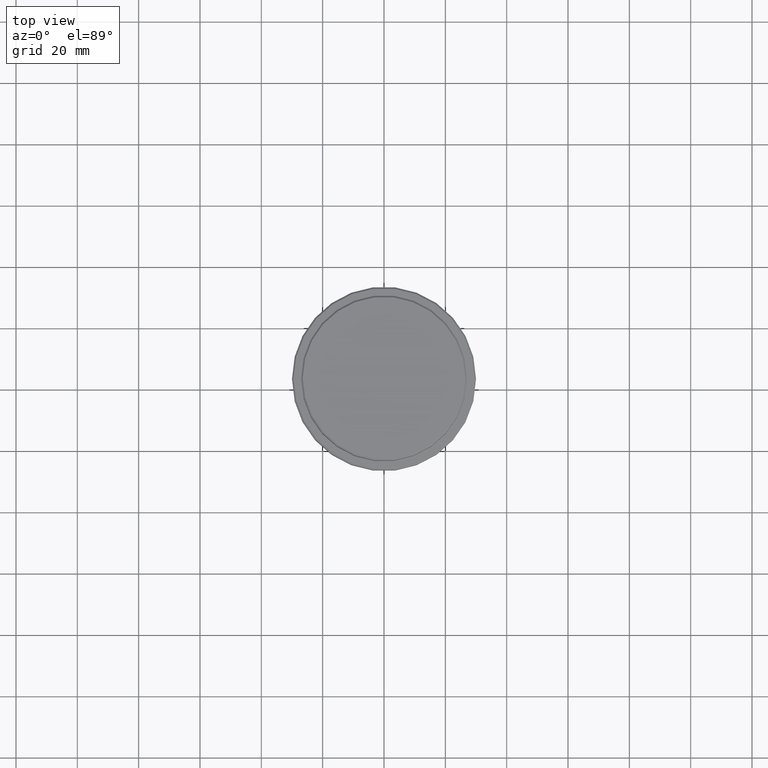
[diagram: clean part render]
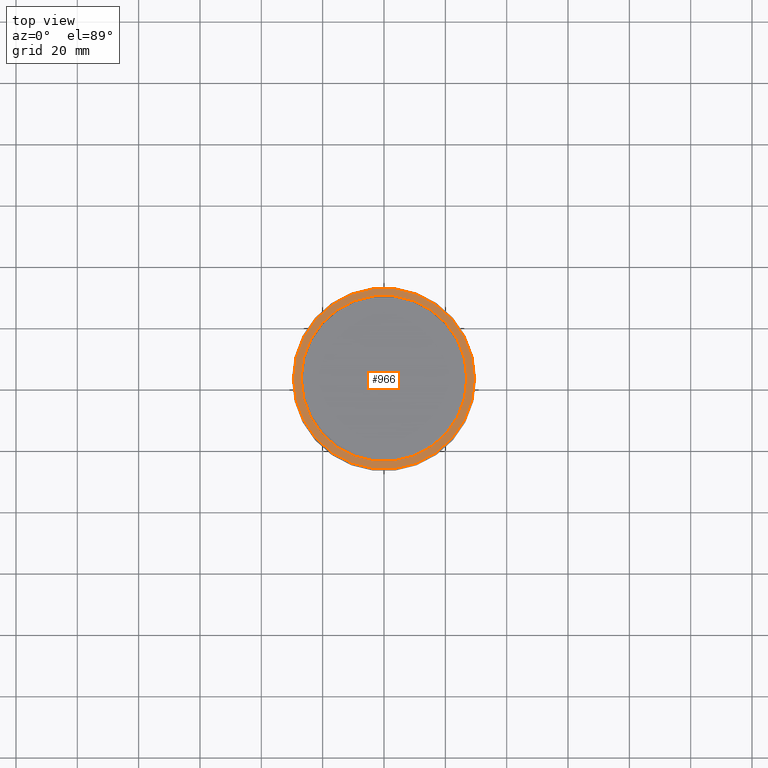
[diagram: same view with one face highlighted and labeled with its STEP entity id]
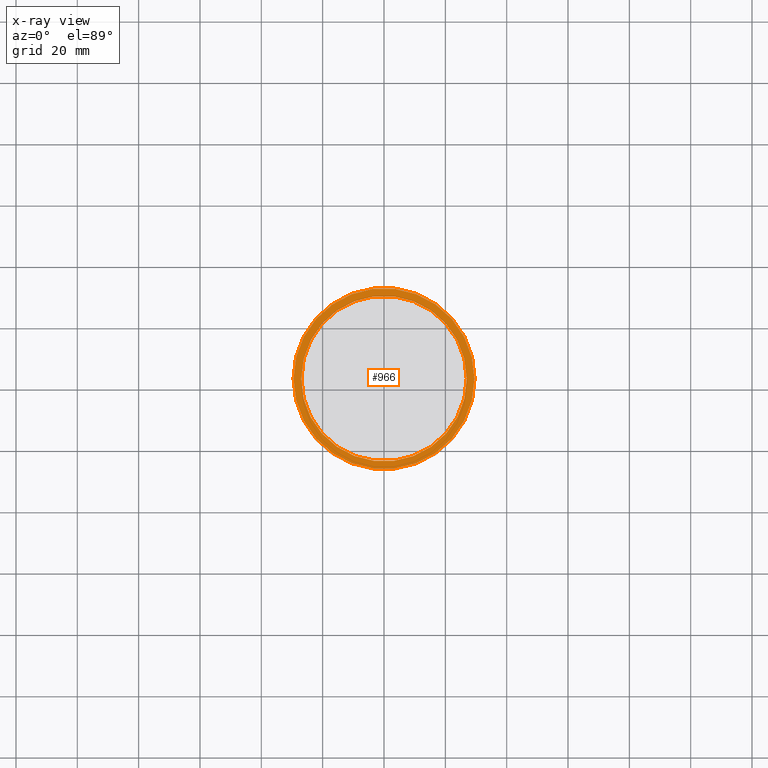
[diagram: x-ray of the same camera — body ghosted, the highlighted face saturated]
A machine part, top view. The second image highlights one B-rep face of the part: STEP entity #966.
The next image is the same camera in x-ray: the body ghosted, the highlighted face saturated — about 0% of this face is hidden behind the body in this view.
In plain terms, the highlighted planar face has unit normal (0, -0, 1).
Its self-contained STEP definition (entity closure, byte-faithful):
#23 = DIRECTION ( 'NONE',  ( -0.000000000000000000, -0.000000000000000000, 1.000000000000000000 ) ) ;
#40 = CARTESIAN_POINT ( 'NONE',  ( 26.99999999999999289, 0.000000000000000000, -12.00000000000000178 ) ) ;
#68 = VERTEX_POINT ( 'NONE', #940 ) ;
#130 = EDGE_CURVE ( 'NONE', #1045, #521, #1020, .T. ) ;
#236 = AXIS2_PLACEMENT_3D ( 'NONE', #1233, #257, #1026 ) ;
#257 = DIRECTION ( 'NONE',  ( 0.000000000000000000, -0.000000000000000000, 1.000000000000000000 ) ) ;
#311 = DIRECTION ( 'NONE',  ( 0.000000000000000000, 0.000000000000000000, -1.000000000000000000 ) ) ;
#383 = ORIENTED_EDGE ( 'NONE', *, *, #130, .T. ) ;
#396 = PLANE ( 'NONE',  #236 ) ;
#414 = DIRECTION ( 'NONE',  ( 0.000000000000000000, 0.000000000000000000, -1.000000000000000000 ) ) ;
#452 = AXIS2_PLACEMENT_3D ( 'NONE', #470, #23, #687 ) ;
#470 = CARTESIAN_POINT ( 'NONE',  ( 0.000000000000000000, 0.000000000000000000, -12.00000000000000178 ) ) ;
#476 = EDGE_LOOP ( 'NONE', ( #1174, #383 ) ) ;
#509 = CARTESIAN_POINT ( 'NONE',  ( 0.000000000000000000, 0.000000000000000000, -12.00000000000000178 ) ) ;
#521 = VERTEX_POINT ( 'NONE', #40 ) ;
#580 = CARTESIAN_POINT ( 'NONE',  ( -29.50000000000002487, 0.000000000000000000, -12.00000000000000178 ) ) ;
#590 = CIRCLE ( 'NONE', #1190, 26.99999999999999289 ) ;
#619 = EDGE_CURVE ( 'NONE', #521, #1045, #590, .T. ) ;
#646 = CARTESIAN_POINT ( 'NONE',  ( 0.000000000000000000, 0.000000000000000000, -12.00000000000000178 ) ) ;
#655 = AXIS2_PLACEMENT_3D ( 'NONE', #646, #414, #844 ) ;
#663 = EDGE_CURVE ( 'NONE', #68, #1223, #952, .T. ) ;
#687 = DIRECTION ( 'NONE',  ( 1.000000000000000000, 0.000000000000000000, 0.000000000000000000 ) ) ;
#693 = FACE_BOUND ( 'NONE', #476, .T. ) ;
#728 = DIRECTION ( 'NONE',  ( 1.000000000000000000, 0.000000000000000000, 0.000000000000000000 ) ) ;
#730 = EDGE_CURVE ( 'NONE', #1223, #68, #1108, .T. ) ;
#753 = CARTESIAN_POINT ( 'NONE',  ( 0.000000000000000000, 0.000000000000000000, -12.00000000000000178 ) ) ;
#768 = EDGE_LOOP ( 'NONE', ( #1315, #1352 ) ) ;
#844 = DIRECTION ( 'NONE',  ( 1.000000000000000000, 0.000000000000000000, 0.000000000000000000 ) ) ;
#940 = CARTESIAN_POINT ( 'NONE',  ( 29.50000000000002487, 3.643324227463376968E-15, -12.00000000000000178 ) ) ;
#952 = CIRCLE ( 'NONE', #1001, 29.50000000000002487 ) ;
#966 = ADVANCED_FACE ( 'NONE', ( #1377, #693 ), #396, .T. ) ;
#1001 = AXIS2_PLACEMENT_3D ( 'NONE', #509, #1065, #1071 ) ;
#1020 = CIRCLE ( 'NONE', #655, 26.99999999999999289 ) ;
#1026 = DIRECTION ( 'NONE',  ( 1.000000000000000000, 0.000000000000000000, 0.000000000000000000 ) ) ;
#1045 = VERTEX_POINT ( 'NONE', #1185 ) ;
#1065 = DIRECTION ( 'NONE',  ( -0.000000000000000000, -0.000000000000000000, 1.000000000000000000 ) ) ;
#1071 = DIRECTION ( 'NONE',  ( 1.000000000000000000, 0.000000000000000000, 0.000000000000000000 ) ) ;
#1108 = CIRCLE ( 'NONE', #452, 29.50000000000002487 ) ;
#1174 = ORIENTED_EDGE ( 'NONE', *, *, #619, .T. ) ;
#1185 = CARTESIAN_POINT ( 'NONE',  ( -26.99999999999999289, 3.306546357697852944E-15, -12.00000000000000178 ) ) ;
#1190 = AXIS2_PLACEMENT_3D ( 'NONE', #753, #311, #728 ) ;
#1223 = VERTEX_POINT ( 'NONE', #580 ) ;
#1233 = CARTESIAN_POINT ( 'NONE',  ( 0.000000000000000000, 26.49999999999999645, -12.00000000000000178 ) ) ;
#1315 = ORIENTED_EDGE ( 'NONE', *, *, #730, .T. ) ;
#1352 = ORIENTED_EDGE ( 'NONE', *, *, #663, .T. ) ;
#1377 = FACE_OUTER_BOUND ( 'NONE', #768, .T. ) ;